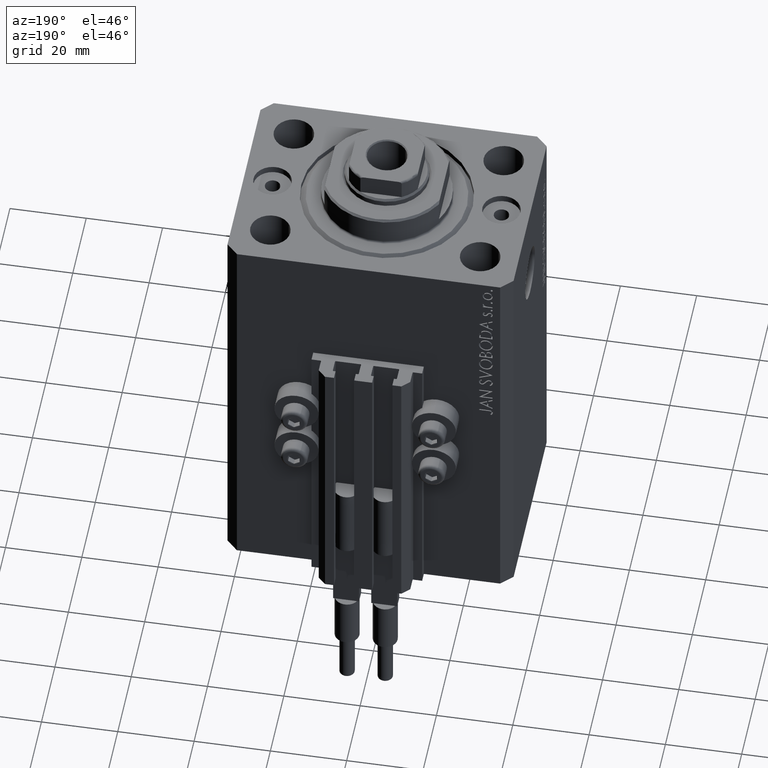
[diagram: clean part render]
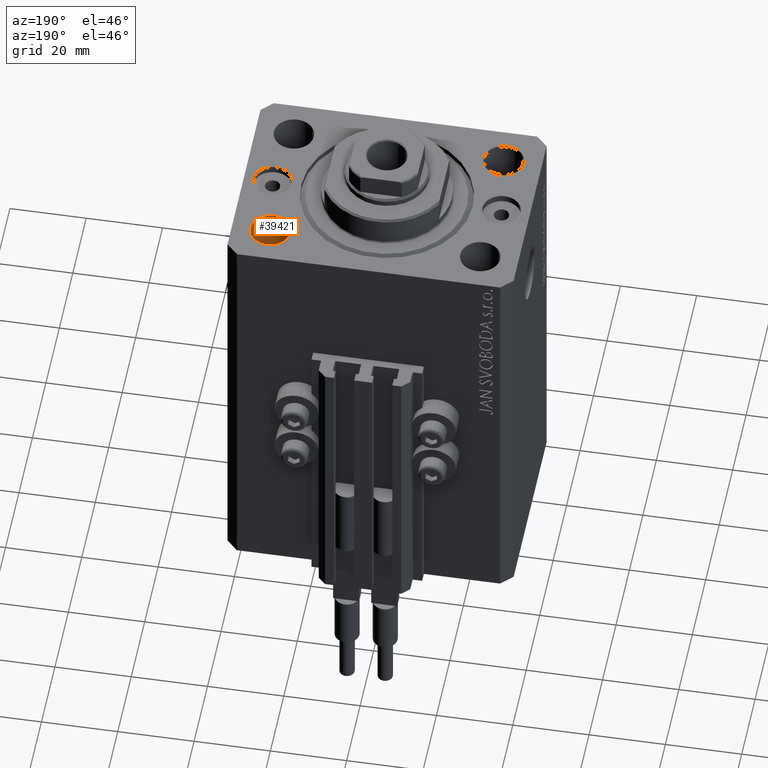
[diagram: same view with one face highlighted and labeled with its STEP entity id]
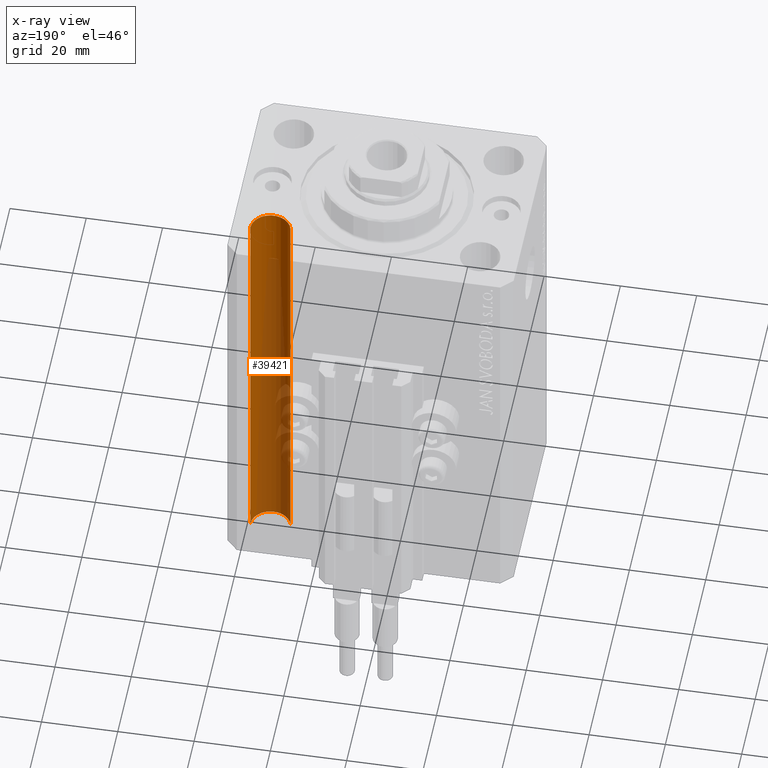
[diagram: x-ray of the same camera — body ghosted, the highlighted face saturated]
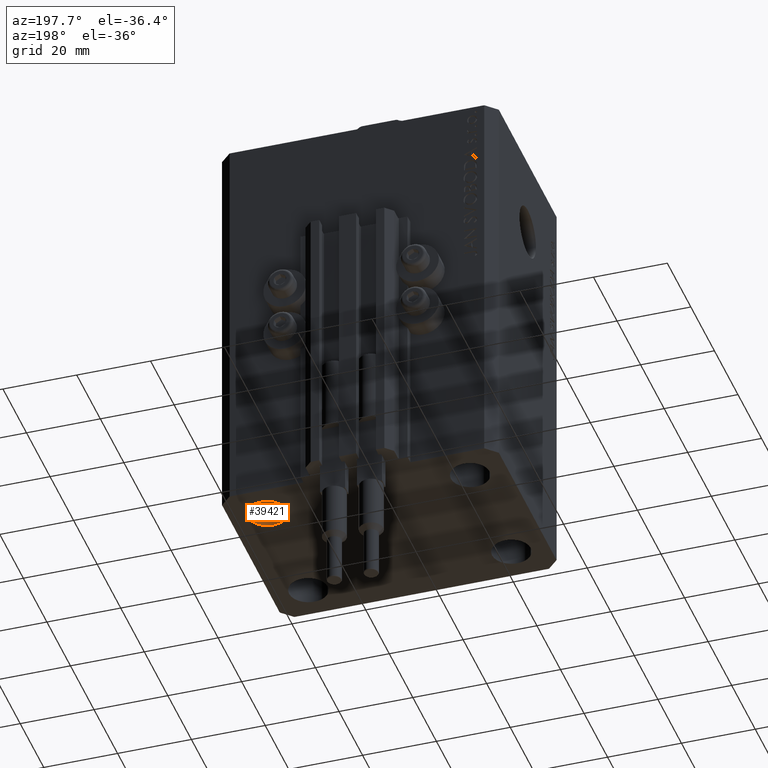
[diagram: same view with one face highlighted and labeled with its STEP entity id]
A machine part, auxiliary view. The second image highlights one B-rep face of the part: STEP entity #39421.
The next image is the same camera in x-ray: the body ghosted, the highlighted face saturated — about 54% of this face is hidden behind the body in this view.
A second angle (auxiliary view) of the same face is appended — the face is thin or edge-on in the first view.
In plain terms, the highlighted cylindrical surface (edge-blend (fillet) strip) has radius 5.25 mm, axis along (0, 0, 1).
Its self-contained STEP definition (entity closure, byte-faithful):
#3810 = CARTESIAN_POINT ( 'NONE',  ( 22.25000000000000000, 17.49999999999999289, 0.000000000000000000 ) ) ;
#5916 = VECTOR ( 'NONE', #32738, 1000.000000000000000 ) ;
#7876 = LINE ( 'NONE', #18087, #9426 ) ;
#8877 = VERTEX_POINT ( 'NONE', #3810 ) ;
#9426 = VECTOR ( 'NONE', #10831, 1000.000000000000000 ) ;
#9584 = CARTESIAN_POINT ( 'NONE',  ( 27.50000000000000000, 17.49999999999999289, -110.0000000000000000 ) ) ;
#9758 = CARTESIAN_POINT ( 'NONE',  ( 22.25000000000000000, 17.49999999999999289, -110.0000000000000000 ) ) ;
#10507 = VERTEX_POINT ( 'NONE', #33197 ) ;
#10831 = DIRECTION ( 'NONE',  ( -0.000000000000000000, -0.000000000000000000, 1.000000000000000000 ) ) ;
#10913 = CARTESIAN_POINT ( 'NONE',  ( 22.25000000000000000, 17.49999999999999289, -124.8492424049175042 ) ) ;
#11539 = EDGE_CURVE ( 'NONE', #10507, #47033, #13476, .T. ) ;
#13476 = CIRCLE ( 'NONE', #40626, 5.250000000000000888 ) ;
#17101 = DIRECTION ( 'NONE',  ( -0.000000000000000000, -0.000000000000000000, -1.000000000000000000 ) ) ;
#17380 = CARTESIAN_POINT ( 'NONE',  ( 27.50000000000000000, 17.49999999999999289, 0.000000000000000000 ) ) ;
#18087 = CARTESIAN_POINT ( 'NONE',  ( 32.75000000000000000, 17.49999999999999289, -124.8492424049175042 ) ) ;
#19191 = ORIENTED_EDGE ( 'NONE', *, *, #27097, .T. ) ;
#19427 = ORIENTED_EDGE ( 'NONE', *, *, #11539, .T. ) ;
#19582 = CYLINDRICAL_SURFACE ( 'NONE', #22795, 5.250000000000000888 ) ;
#21901 = AXIS2_PLACEMENT_3D ( 'NONE', #17380, #32192, #47025 ) ;
#22373 = EDGE_LOOP ( 'NONE', ( #19427, #38461, #19191, #29549 ) ) ;
#22795 = AXIS2_PLACEMENT_3D ( 'NONE', #26399, #27126, #45832 ) ;
#25267 = EDGE_CURVE ( 'NONE', #10507, #46097, #7876, .T. ) ;
#25454 = LINE ( 'NONE', #10913, #5916 ) ;
#26399 = CARTESIAN_POINT ( 'NONE',  ( 27.50000000000000000, 17.49999999999999289, -124.8492424049175042 ) ) ;
#27097 = EDGE_CURVE ( 'NONE', #8877, #46097, #36658, .T. ) ;
#27126 = DIRECTION ( 'NONE',  ( -0.000000000000000000, -0.000000000000000000, 1.000000000000000000 ) ) ;
#29549 = ORIENTED_EDGE ( 'NONE', *, *, #25267, .F. ) ;
#32192 = DIRECTION ( 'NONE',  ( 0.000000000000000000, 0.000000000000000000, 1.000000000000000000 ) ) ;
#32738 = DIRECTION ( 'NONE',  ( -0.000000000000000000, -0.000000000000000000, 1.000000000000000000 ) ) ;
#33197 = CARTESIAN_POINT ( 'NONE',  ( 32.75000000000000000, 17.49999999999999289, -110.0000000000000000 ) ) ;
#34166 = FACE_OUTER_BOUND ( 'NONE', #22373, .T. ) ;
#36658 = CIRCLE ( 'NONE', #21901, 5.250000000000000888 ) ;
#38461 = ORIENTED_EDGE ( 'NONE', *, *, #45452, .T. ) ;
#39421 = ADVANCED_FACE ( 'NONE', ( #34166 ), #19582, .F. ) ;
#40626 = AXIS2_PLACEMENT_3D ( 'NONE', #9584, #17101, #46265 ) ;
#42551 = CARTESIAN_POINT ( 'NONE',  ( 32.75000000000000000, 17.49999999999999289, 0.000000000000000000 ) ) ;
#45452 = EDGE_CURVE ( 'NONE', #47033, #8877, #25454, .T. ) ;
#45832 = DIRECTION ( 'NONE',  ( 1.000000000000000000, 0.000000000000000000, 0.000000000000000000 ) ) ;
#46097 = VERTEX_POINT ( 'NONE', #42551 ) ;
#46265 = DIRECTION ( 'NONE',  ( 1.000000000000000000, 0.000000000000000000, 0.000000000000000000 ) ) ;
#47025 = DIRECTION ( 'NONE',  ( 1.000000000000000000, 0.000000000000000000, 0.000000000000000000 ) ) ;
#47033 = VERTEX_POINT ( 'NONE', #9758 ) ;